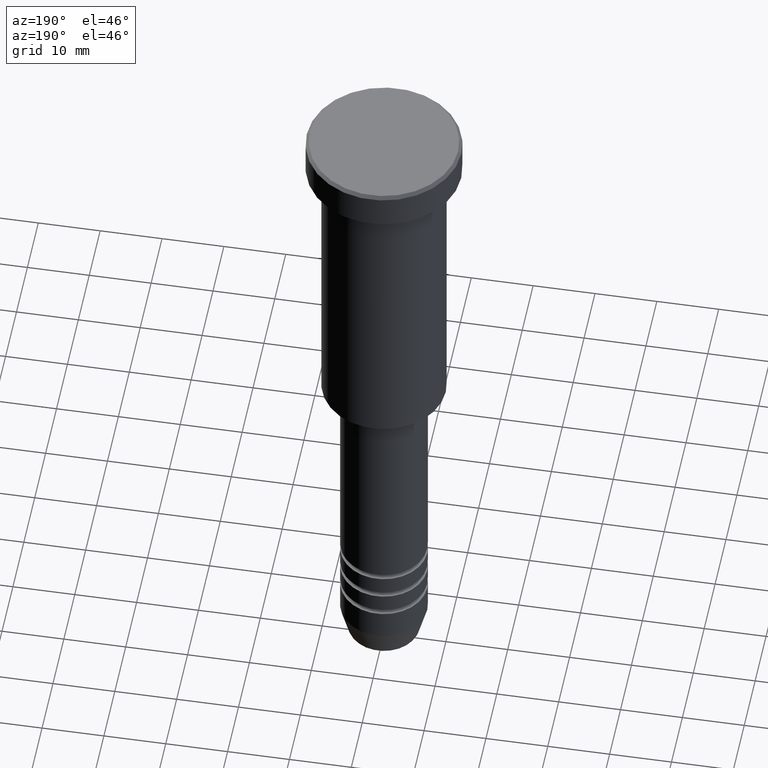
[diagram: clean part render]
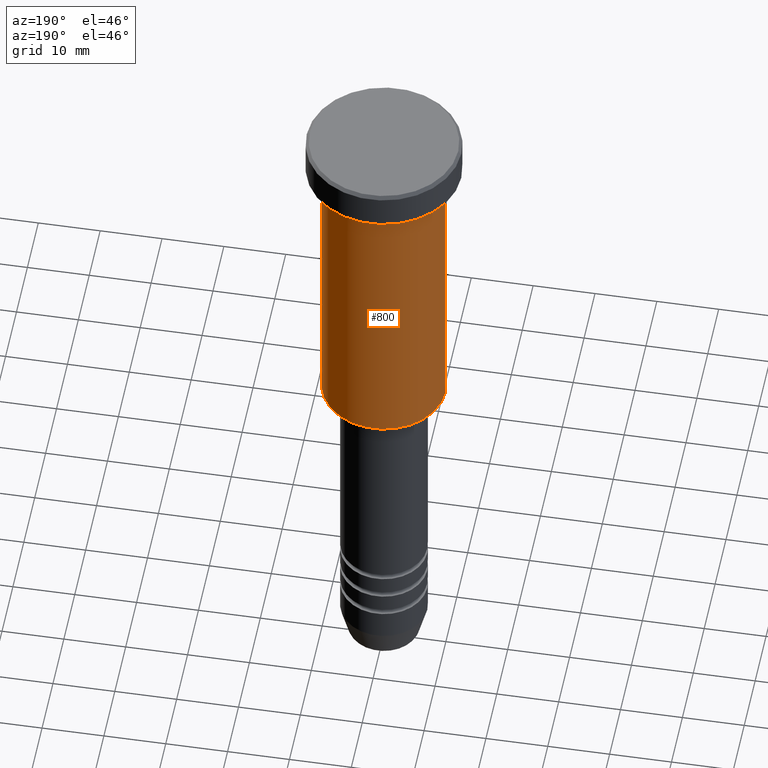
[diagram: same view with one face highlighted and labeled with its STEP entity id]
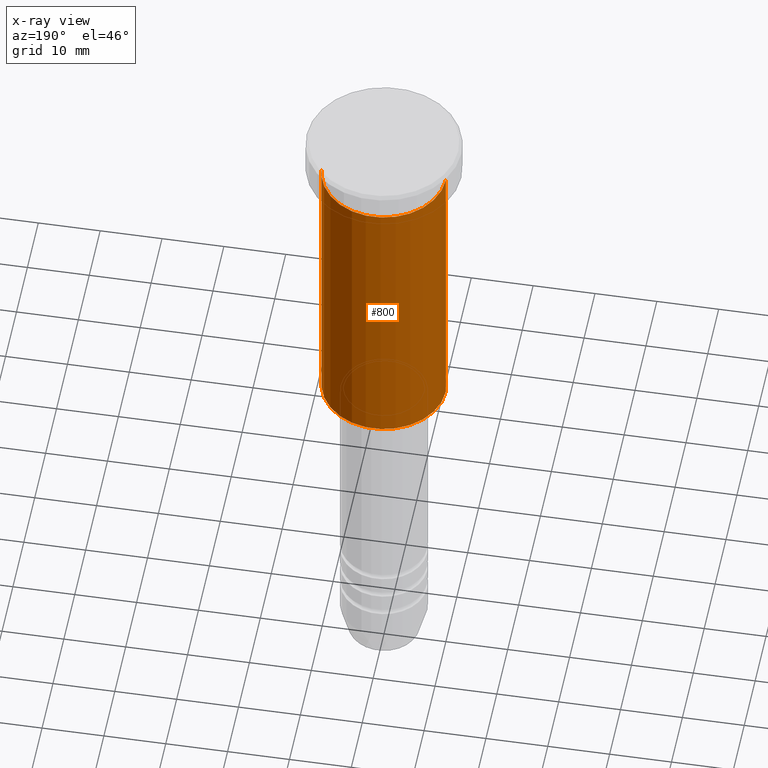
[diagram: x-ray of the same camera — body ghosted, the highlighted face saturated]
A machine part, auxiliary view. The second image highlights one B-rep face of the part: STEP entity #800.
The next image is the same camera in x-ray: the body ghosted, the highlighted face saturated — about 0% of this face is hidden behind the body in this view.
In plain terms, the highlighted cylindrical surface (partial cylindrical patch) has radius 10 mm, axis along (-0, -0, 1).
Its self-contained STEP definition (entity closure, byte-faithful):
#1 = VERTEX_POINT ( 'NONE', #202 ) ;
#31 = DIRECTION ( 'NONE',  ( -0.000000000000000000, -0.000000000000000000, 1.000000000000000000 ) ) ;
#51 = AXIS2_PLACEMENT_3D ( 'NONE', #1054, #600, #1061 ) ;
#58 = FACE_OUTER_BOUND ( 'NONE', #156, .T. ) ;
#74 = VERTEX_POINT ( 'NONE', #188 ) ;
#82 = CARTESIAN_POINT ( 'NONE',  ( 10.00000000000000000, 0.000000000000000000, -6.999999999999996447 ) ) ;
#128 = DIRECTION ( 'NONE',  ( 1.000000000000000000, 0.000000000000000000, 0.000000000000000000 ) ) ;
#146 = CARTESIAN_POINT ( 'NONE',  ( 10.00000000000000000, 0.000000000000000000, 0.000000000000000000 ) ) ;
#156 = EDGE_LOOP ( 'NONE', ( #580, #1057, #615, #848 ) ) ;
#188 = CARTESIAN_POINT ( 'NONE',  ( 10.00000000000000000, 0.000000000000000000, -55.49999999999999289 ) ) ;
#192 = EDGE_CURVE ( 'NONE', #74, #1, #766, .T. ) ;
#202 = CARTESIAN_POINT ( 'NONE',  ( -10.00000000000000000, 1.224646799147353256E-15, -55.49999999999999289 ) ) ;
#227 = DIRECTION ( 'NONE',  ( -0.000000000000000000, -0.000000000000000000, 1.000000000000000000 ) ) ;
#292 = AXIS2_PLACEMENT_3D ( 'NONE', #857, #618, #128 ) ;
#293 = VERTEX_POINT ( 'NONE', #82 ) ;
#310 = CARTESIAN_POINT ( 'NONE',  ( 0.000000000000000000, 0.000000000000000000, -55.49999999999999289 ) ) ;
#358 = AXIS2_PLACEMENT_3D ( 'NONE', #310, #1130, #1048 ) ;
#416 = LINE ( 'NONE', #1050, #533 ) ;
#521 = LINE ( 'NONE', #146, #592 ) ;
#533 = VECTOR ( 'NONE', #227, 1000.000000000000000 ) ;
#580 = ORIENTED_EDGE ( 'NONE', *, *, #192, .T. ) ;
#592 = VECTOR ( 'NONE', #31, 1000.000000000000000 ) ;
#600 = DIRECTION ( 'NONE',  ( -0.000000000000000000, -0.000000000000000000, 1.000000000000000000 ) ) ;
#615 = ORIENTED_EDGE ( 'NONE', *, *, #786, .F. ) ;
#618 = DIRECTION ( 'NONE',  ( -0.000000000000000000, -0.000000000000000000, 1.000000000000000000 ) ) ;
#766 = CIRCLE ( 'NONE', #358, 10.00000000000000000 ) ;
#786 = EDGE_CURVE ( 'NONE', #293, #850, #1016, .T. ) ;
#788 = CYLINDRICAL_SURFACE ( 'NONE', #292, 10.00000000000000000 ) ;
#800 = ADVANCED_FACE ( 'NONE', ( #58 ), #788, .T. ) ;
#809 = EDGE_CURVE ( 'NONE', #74, #293, #521, .T. ) ;
#848 = ORIENTED_EDGE ( 'NONE', *, *, #809, .F. ) ;
#850 = VERTEX_POINT ( 'NONE', #866 ) ;
#857 = CARTESIAN_POINT ( 'NONE',  ( 0.000000000000000000, 0.000000000000000000, 0.000000000000000000 ) ) ;
#866 = CARTESIAN_POINT ( 'NONE',  ( -10.00000000000000000, 1.224646799147353256E-15, -6.999999999999996447 ) ) ;
#920 = EDGE_CURVE ( 'NONE', #1, #850, #416, .T. ) ;
#1016 = CIRCLE ( 'NONE', #51, 10.00000000000000000 ) ;
#1048 = DIRECTION ( 'NONE',  ( -1.000000000000000000, 0.000000000000000000, 0.000000000000000000 ) ) ;
#1050 = CARTESIAN_POINT ( 'NONE',  ( -10.00000000000000000, 1.224646799147353256E-15, 0.000000000000000000 ) ) ;
#1054 = CARTESIAN_POINT ( 'NONE',  ( 0.000000000000000000, 0.000000000000000000, -6.999999999999996447 ) ) ;
#1057 = ORIENTED_EDGE ( 'NONE', *, *, #920, .T. ) ;
#1061 = DIRECTION ( 'NONE',  ( 1.000000000000000000, 0.000000000000000000, 0.000000000000000000 ) ) ;
#1130 = DIRECTION ( 'NONE',  ( -0.000000000000000000, -0.000000000000000000, 1.000000000000000000 ) ) ;